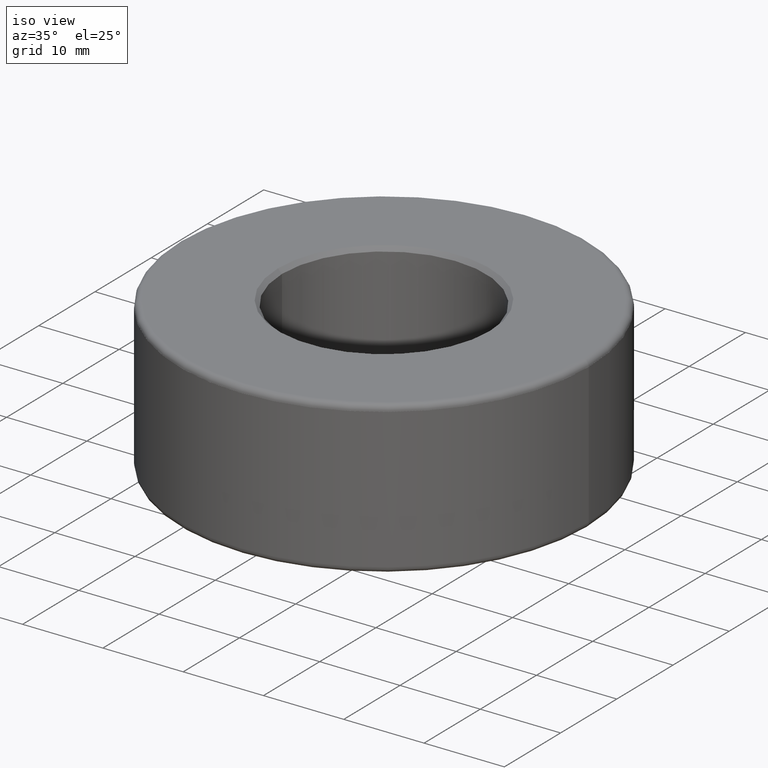
[diagram: clean part render]
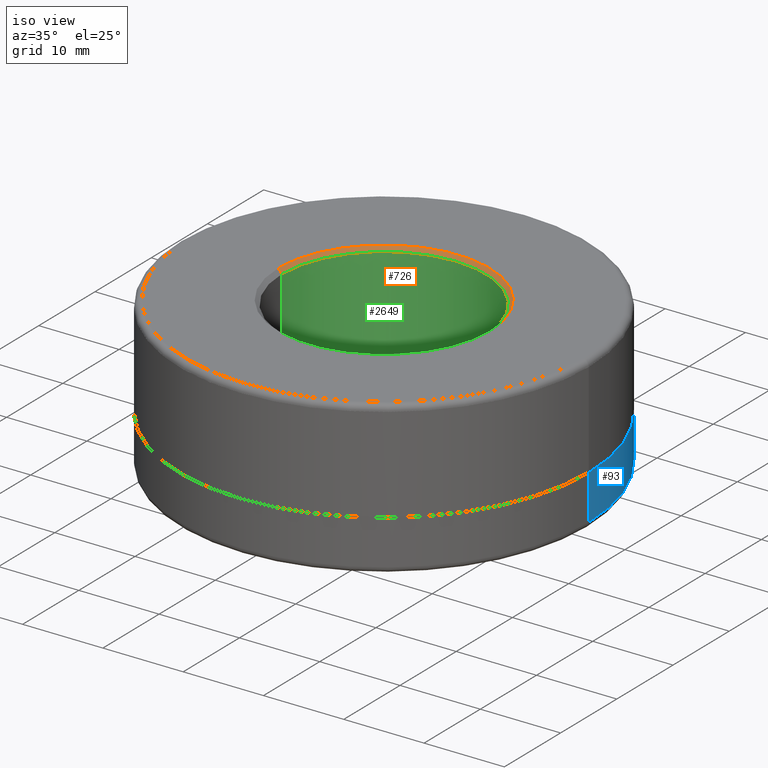
[diagram: same view with three faces highlighted in distinct colors, each labeled with its STEP entity id]
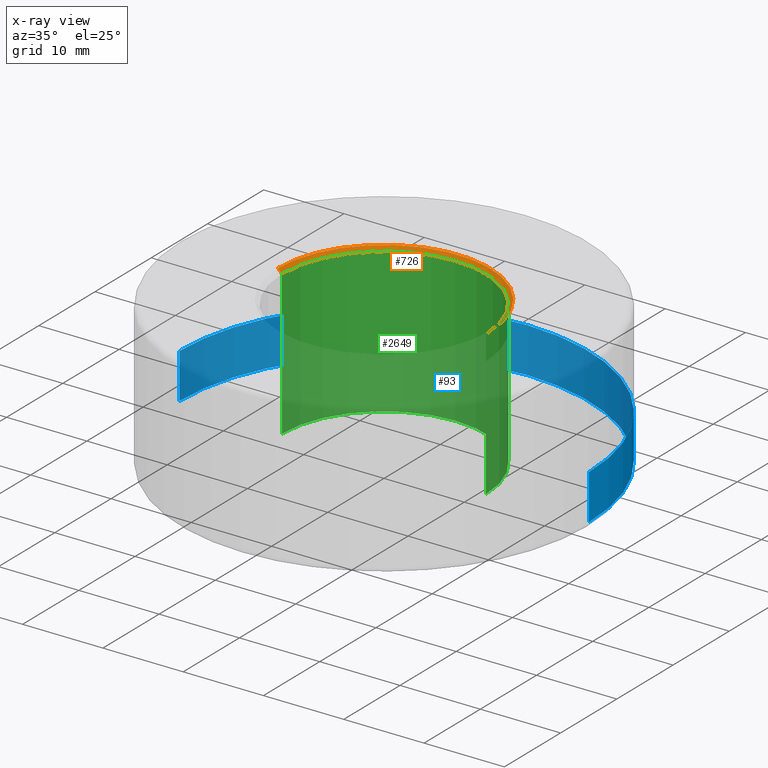
[diagram: x-ray of the same camera — body ghosted, the three highlighted faces saturated]
A machine part, iso view with three faces highlighted in distinct colors.
The next image is the same camera in x-ray (body ghosted, the three faces saturated) — at least one of them is partly hidden behind the body in this view.
Their STEP definitions:

[orange] entity #726 — the highlighted conical surface has half-angle 45 deg.
#52 = VERTEX_POINT ( 'NONE', #161 ) ;
#126 = CARTESIAN_POINT ( 'NONE',  ( -12.69999999999999900, 1.555301434917138400E-015, 8.999999999999985800 ) ) ;
#161 = CARTESIAN_POINT ( 'NONE',  ( 13.20000000000001200, 0.0000000000000000000, 9.500000000000000000 ) ) ;
#197 = CARTESIAN_POINT ( 'NONE',  ( -13.20000000000001200, 1.616533774874507800E-015, 9.500000000000000000 ) ) ;
#349 = CARTESIAN_POINT ( 'NONE',  ( 0.0000000000000000000, 0.0000000000000000000, 9.500000000000000000 ) ) ;
#420 = VECTOR ( 'NONE', #755, 1000.000000000000000 ) ;
#441 = FACE_OUTER_BOUND ( 'NONE', #1654, .T. ) ;
#615 = EDGE_CURVE ( 'NONE', #1991, #1406, #1815, .T. ) ;
#639 = DIRECTION ( 'NONE',  ( 0.0000000000000000000, 0.0000000000000000000, 1.000000000000000000 ) ) ;
#712 = ORIENTED_EDGE ( 'NONE', *, *, #2755, .T. ) ;
#726 = ADVANCED_FACE ( 'NONE', ( #441 ), #1517, .F. ) ;
#755 = DIRECTION ( 'NONE',  ( 0.7071067811865463500, 0.0000000000000000000, 0.7071067811865487900 ) ) ;
#853 = CARTESIAN_POINT ( 'NONE',  ( 12.69999999999999900, 0.0000000000000000000, 8.999999999999985800 ) ) ;
#966 = CIRCLE ( 'NONE', #2711, 13.20000000000001200 ) ;
#1050 = CARTESIAN_POINT ( 'NONE',  ( -12.69999999999999900, 1.555301434917138400E-015, 8.999999999999985800 ) ) ;
#1149 = DIRECTION ( 'NONE',  ( 0.0000000000000000000, 0.0000000000000000000, 1.000000000000000000 ) ) ;
#1160 = EDGE_CURVE ( 'NONE', #1406, #52, #966, .T. ) ;
#1316 = CARTESIAN_POINT ( 'NONE',  ( 0.0000000000000000000, 0.0000000000000000000, 8.999999999999985800 ) ) ;
#1368 = DIRECTION ( 'NONE',  ( 1.000000000000000000, 0.0000000000000000000, 0.0000000000000000000 ) ) ;
#1380 = CARTESIAN_POINT ( 'NONE',  ( 0.0000000000000000000, 0.0000000000000000000, 8.999999999999985800 ) ) ;
#1386 = LINE ( 'NONE', #2697, #420 ) ;
#1406 = VERTEX_POINT ( 'NONE', #197 ) ;
#1424 = ORIENTED_EDGE ( 'NONE', *, *, #615, .F. ) ;
#1438 = VERTEX_POINT ( 'NONE', #853 ) ;
#1517 = CONICAL_SURFACE ( 'NONE', #1943, 12.69999999999999900, 0.7853981633974466100 ) ;
#1654 = EDGE_LOOP ( 'NONE', ( #1424, #1659, #712, #2155 ) ) ;
#1659 = ORIENTED_EDGE ( 'NONE', *, *, #2652, .F. ) ;
#1815 = LINE ( 'NONE', #126, #2254 ) ;
#1818 = DIRECTION ( 'NONE',  ( 1.000000000000000000, 0.0000000000000000000, 0.0000000000000000000 ) ) ;
#1943 = AXIS2_PLACEMENT_3D ( 'NONE', #1316, #639, #2352 ) ;
#1991 = VERTEX_POINT ( 'NONE', #1050 ) ;
#2155 = ORIENTED_EDGE ( 'NONE', *, *, #1160, .F. ) ;
#2254 = VECTOR ( 'NONE', #2479, 1000.000000000000000 ) ;
#2287 = DIRECTION ( 'NONE',  ( -0.0000000000000000000, -0.0000000000000000000, -1.000000000000000000 ) ) ;
#2352 = DIRECTION ( 'NONE',  ( 1.000000000000000000, 0.0000000000000000000, 0.0000000000000000000 ) ) ;
#2414 = CIRCLE ( 'NONE', #2700, 12.69999999999999900 ) ;
#2479 = DIRECTION ( 'NONE',  ( -0.7071067811865463500, 8.659560562354919300E-017, 0.7071067811865487900 ) ) ;
#2652 = EDGE_CURVE ( 'NONE', #1438, #1991, #2414, .T. ) ;
#2697 = CARTESIAN_POINT ( 'NONE',  ( 12.69999999999999900, 0.0000000000000000000, 8.999999999999985800 ) ) ;
#2700 = AXIS2_PLACEMENT_3D ( 'NONE', #1380, #1149, #1368 ) ;
#2711 = AXIS2_PLACEMENT_3D ( 'NONE', #349, #2287, #1818 ) ;
#2755 = EDGE_CURVE ( 'NONE', #1438, #52, #1386, .T. ) ;

[blue] entity #93 — the highlighted cylindrical surface (partial cylindrical patch) has radius 25.5 mm, axis along (0, 0, 1).
#77 = VECTOR ( 'NONE', #1565, 1000.000000000000000 ) ;
#89 = EDGE_CURVE ( 'NONE', #147, #2105, #1059, .T. ) ;
#93 = ADVANCED_FACE ( 'NONE', ( #700 ), #1340, .T. ) ;
#117 = AXIS2_PLACEMENT_3D ( 'NONE', #637, #924, #1157 ) ;
#147 = VERTEX_POINT ( 'NONE', #2538 ) ;
#272 = CIRCLE ( 'NONE', #117, 25.50000000000000000 ) ;
#305 = ORIENTED_EDGE ( 'NONE', *, *, #2571, .T. ) ;
#311 = CIRCLE ( 'NONE', #459, 25.50000000000000000 ) ;
#458 = ORIENTED_EDGE ( 'NONE', *, *, #1961, .F. ) ;
#459 = AXIS2_PLACEMENT_3D ( 'NONE', #1923, #1275, #1491 ) ;
#470 = VECTOR ( 'NONE', #2115, 1000.000000000000000 ) ;
#637 = CARTESIAN_POINT ( 'NONE',  ( 0.0000000000000000000, 0.0000000000000000000, -8.749999999999998200 ) ) ;
#686 = EDGE_LOOP ( 'NONE', ( #305, #1971, #458, #2436 ) ) ;
#700 = FACE_OUTER_BOUND ( 'NONE', #686, .T. ) ;
#924 = DIRECTION ( 'NONE',  ( 0.0000000000000000000, 0.0000000000000000000, 1.000000000000000000 ) ) ;
#988 = DIRECTION ( 'NONE',  ( 1.000000000000000000, 0.0000000000000000000, 0.0000000000000000000 ) ) ;
#993 = LINE ( 'NONE', #2003, #77 ) ;
#1059 = LINE ( 'NONE', #1872, #470 ) ;
#1157 = DIRECTION ( 'NONE',  ( 1.000000000000000000, 0.0000000000000000000, 0.0000000000000000000 ) ) ;
#1275 = DIRECTION ( 'NONE',  ( 0.0000000000000000000, 0.0000000000000000000, 1.000000000000000000 ) ) ;
#1340 = CYLINDRICAL_SURFACE ( 'NONE', #1814, 25.50000000000000000 ) ;
#1491 = DIRECTION ( 'NONE',  ( 1.000000000000000000, 0.0000000000000000000, 0.0000000000000000000 ) ) ;
#1565 = DIRECTION ( 'NONE',  ( 0.0000000000000000000, 0.0000000000000000000, 1.000000000000000000 ) ) ;
#1574 = EDGE_CURVE ( 'NONE', #2200, #2426, #993, .T. ) ;
#1672 = DIRECTION ( 'NONE',  ( 0.0000000000000000000, 0.0000000000000000000, 1.000000000000000000 ) ) ;
#1814 = AXIS2_PLACEMENT_3D ( 'NONE', #2081, #1672, #988 ) ;
#1872 = CARTESIAN_POINT ( 'NONE',  ( -25.50000000000000000, 3.122849337825750200E-015, -9.500000000000000000 ) ) ;
#1923 = CARTESIAN_POINT ( 'NONE',  ( 0.0000000000000000000, 0.0000000000000000000, -3.125000000000000900 ) ) ;
#1961 = EDGE_CURVE ( 'NONE', #2426, #2105, #311, .T. ) ;
#1971 = ORIENTED_EDGE ( 'NONE', *, *, #89, .T. ) ;
#2003 = CARTESIAN_POINT ( 'NONE',  ( 25.50000000000000000, 0.0000000000000000000, -9.500000000000000000 ) ) ;
#2044 = CARTESIAN_POINT ( 'NONE',  ( 25.50000000000000000, 0.0000000000000000000, -8.749999999999998200 ) ) ;
#2060 = CARTESIAN_POINT ( 'NONE',  ( 25.50000000000000000, 0.0000000000000000000, -3.125000000000000900 ) ) ;
#2081 = CARTESIAN_POINT ( 'NONE',  ( 0.0000000000000000000, 0.0000000000000000000, -9.500000000000000000 ) ) ;
#2105 = VERTEX_POINT ( 'NONE', #2626 ) ;
#2115 = DIRECTION ( 'NONE',  ( 0.0000000000000000000, 0.0000000000000000000, 1.000000000000000000 ) ) ;
#2200 = VERTEX_POINT ( 'NONE', #2044 ) ;
#2426 = VERTEX_POINT ( 'NONE', #2060 ) ;
#2436 = ORIENTED_EDGE ( 'NONE', *, *, #1574, .F. ) ;
#2538 = CARTESIAN_POINT ( 'NONE',  ( -25.50000000000000000, 3.122849337825750200E-015, -8.749999999999998200 ) ) ;
#2571 = EDGE_CURVE ( 'NONE', #2200, #147, #272, .T. ) ;
#2626 = CARTESIAN_POINT ( 'NONE',  ( -25.50000000000000000, 3.122849337825750200E-015, -3.125000000000000900 ) ) ;

[green] entity #2649 — the highlighted cylindrical surface (partial cylindrical patch) has radius 12.7 mm, axis along (0, 0, 1).
#91 = CARTESIAN_POINT ( 'NONE',  ( 12.69999999999999900, 0.0000000000000000000, -9.500000000000000000 ) ) ;
#111 = VECTOR ( 'NONE', #316, 1000.000000000000000 ) ;
#238 = EDGE_LOOP ( 'NONE', ( #2204, #586, #2619, #1619 ) ) ;
#316 = DIRECTION ( 'NONE',  ( 0.0000000000000000000, 0.0000000000000000000, 1.000000000000000000 ) ) ;
#338 = CARTESIAN_POINT ( 'NONE',  ( 0.0000000000000000000, 0.0000000000000000000, -9.500000000000000000 ) ) ;
#586 = ORIENTED_EDGE ( 'NONE', *, *, #2308, .T. ) ;
#684 = DIRECTION ( 'NONE',  ( 0.0000000000000000000, 0.0000000000000000000, 1.000000000000000000 ) ) ;
#853 = CARTESIAN_POINT ( 'NONE',  ( 12.69999999999999900, 0.0000000000000000000, 8.999999999999985800 ) ) ;
#1031 = LINE ( 'NONE', #91, #111 ) ;
#1050 = CARTESIAN_POINT ( 'NONE',  ( -12.69999999999999900, 1.555301434917138400E-015, 8.999999999999985800 ) ) ;
#1149 = DIRECTION ( 'NONE',  ( 0.0000000000000000000, 0.0000000000000000000, 1.000000000000000000 ) ) ;
#1258 = DIRECTION ( 'NONE',  ( 0.0000000000000000000, 0.0000000000000000000, 1.000000000000000000 ) ) ;
#1283 = AXIS2_PLACEMENT_3D ( 'NONE', #1964, #2670, #2419 ) ;
#1368 = DIRECTION ( 'NONE',  ( 1.000000000000000000, 0.0000000000000000000, 0.0000000000000000000 ) ) ;
#1380 = CARTESIAN_POINT ( 'NONE',  ( 0.0000000000000000000, 0.0000000000000000000, 8.999999999999985800 ) ) ;
#1427 = FACE_OUTER_BOUND ( 'NONE', #238, .T. ) ;
#1438 = VERTEX_POINT ( 'NONE', #853 ) ;
#1606 = VERTEX_POINT ( 'NONE', #1763 ) ;
#1619 = ORIENTED_EDGE ( 'NONE', *, *, #2652, .T. ) ;
#1763 = CARTESIAN_POINT ( 'NONE',  ( 12.69999999999999900, 0.0000000000000000000, -8.999999999999998200 ) ) ;
#1881 = EDGE_CURVE ( 'NONE', #2525, #1991, #2071, .T. ) ;
#1964 = CARTESIAN_POINT ( 'NONE',  ( 0.0000000000000000000, 0.0000000000000000000, -8.999999999999998200 ) ) ;
#1991 = VERTEX_POINT ( 'NONE', #1050 ) ;
#2055 = CARTESIAN_POINT ( 'NONE',  ( -12.69999999999999900, 1.555301434917138400E-015, -8.999999999999998200 ) ) ;
#2071 = LINE ( 'NONE', #2117, #2228 ) ;
#2117 = CARTESIAN_POINT ( 'NONE',  ( -12.69999999999999900, 1.555301434917138400E-015, -9.500000000000000000 ) ) ;
#2172 = AXIS2_PLACEMENT_3D ( 'NONE', #338, #684, #2662 ) ;
#2204 = ORIENTED_EDGE ( 'NONE', *, *, #1881, .F. ) ;
#2228 = VECTOR ( 'NONE', #1258, 1000.000000000000000 ) ;
#2308 = EDGE_CURVE ( 'NONE', #2525, #1606, #2424, .T. ) ;
#2362 = CYLINDRICAL_SURFACE ( 'NONE', #2172, 12.69999999999999900 ) ;
#2397 = EDGE_CURVE ( 'NONE', #1606, #1438, #1031, .T. ) ;
#2414 = CIRCLE ( 'NONE', #2700, 12.69999999999999900 ) ;
#2419 = DIRECTION ( 'NONE',  ( 1.000000000000000000, 0.0000000000000000000, 0.0000000000000000000 ) ) ;
#2424 = CIRCLE ( 'NONE', #1283, 12.69999999999999900 ) ;
#2525 = VERTEX_POINT ( 'NONE', #2055 ) ;
#2619 = ORIENTED_EDGE ( 'NONE', *, *, #2397, .T. ) ;
#2649 = ADVANCED_FACE ( 'NONE', ( #1427 ), #2362, .F. ) ;
#2652 = EDGE_CURVE ( 'NONE', #1438, #1991, #2414, .T. ) ;
#2662 = DIRECTION ( 'NONE',  ( 1.000000000000000000, 0.0000000000000000000, 0.0000000000000000000 ) ) ;
#2670 = DIRECTION ( 'NONE',  ( -0.0000000000000000000, -0.0000000000000000000, -1.000000000000000000 ) ) ;
#2700 = AXIS2_PLACEMENT_3D ( 'NONE', #1380, #1149, #1368 ) ;